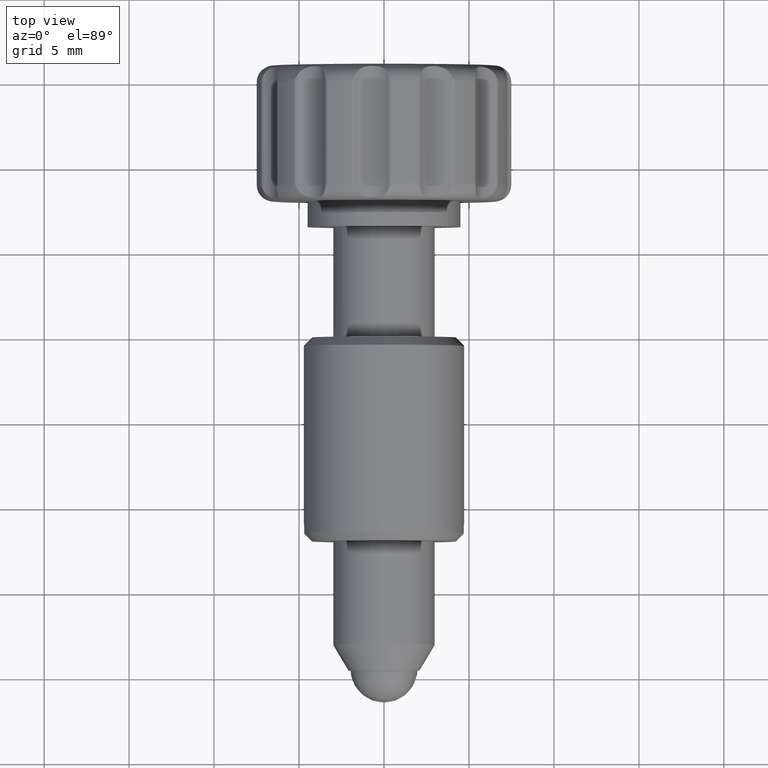
[diagram: clean part render]
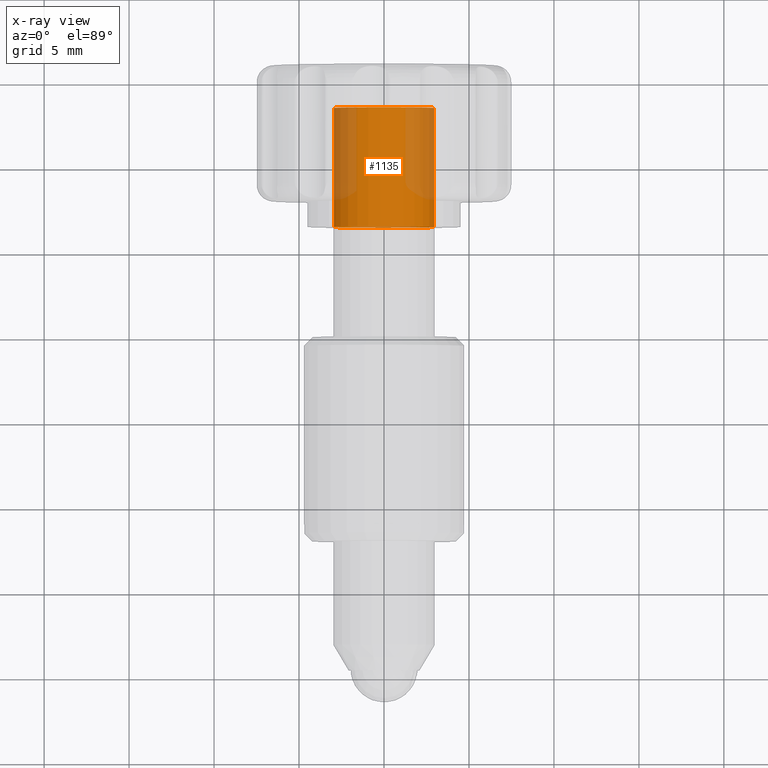
[diagram: x-ray — body ghosted, one internal face saturated and labeled with its STEP entity id]
A machine part, top view, then the same camera in x-ray: the body is ghosted and one INTERNAL B-rep face — a face not visible from any outside direction — is saturated and labeled: STEP entity #1135.
In plain terms, the highlighted cylindrical surface (bore or boss wall) has radius 2.95 mm, axis along (-0, -1, -0).
Its self-contained STEP definition (entity closure, byte-faithful):
#34 = EDGE_CURVE ( 'NONE', #1360, #1360, #2110, .T. ) ;
#162 = CIRCLE ( 'NONE', #456, 2.950000000000038813 ) ;
#175 = DIRECTION ( 'NONE',  ( -0.1636311210927796911, 2.940209281316583545E-16, -0.9865215943961490597 ) ) ;
#262 = CYLINDRICAL_SURFACE ( 'NONE', #366, 2.950000000000038813 ) ;
#366 = AXIS2_PLACEMENT_3D ( 'NONE', #2301, #1078, #495 ) ;
#456 = AXIS2_PLACEMENT_3D ( 'NONE', #1874, #2130, #2333 ) ;
#495 = DIRECTION ( 'NONE',  ( -0.1636311210927796911, 5.880418562633167089E-16, -0.9865215943961490597 ) ) ;
#965 = AXIS2_PLACEMENT_3D ( 'NONE', #2242, #2046, #175 ) ;
#1078 = DIRECTION ( 'NONE',  ( -3.260545687903909196E-16, -1.000000000000000000, -3.253773888833970700E-16 ) ) ;
#1087 = EDGE_LOOP ( 'NONE', ( #1125 ) ) ;
#1125 = ORIENTED_EDGE ( 'NONE', *, *, #34, .T. ) ;
#1135 = ADVANCED_FACE ( 'NONE', ( #1894, #2342 ), #262, .F. ) ;
#1360 = VERTEX_POINT ( 'NONE', #1966 ) ;
#1496 = EDGE_LOOP ( 'NONE', ( #1862 ) ) ;
#1862 = ORIENTED_EDGE ( 'NONE', *, *, #2011, .F. ) ;
#1874 = CARTESIAN_POINT ( 'NONE',  ( 3.174872051088092690E-15, 13.50066463725904597, -1.987618271071249342E-14 ) ) ;
#1894 = FACE_OUTER_BOUND ( 'NONE', #1496, .T. ) ;
#1966 = CARTESIAN_POINT ( 'NONE',  ( -0.4827118072237055468, 6.500664637259083278, -2.910238703468700283 ) ) ;
#2011 = EDGE_CURVE ( 'NONE', #2032, #2032, #162, .T. ) ;
#2032 = VERTEX_POINT ( 'NONE', #2231 ) ;
#2046 = DIRECTION ( 'NONE',  ( -3.260545687903909196E-16, -1.000000000000000000, -3.253773888833970700E-16 ) ) ;
#2110 = CIRCLE ( 'NONE', #965, 2.950000000000038813 ) ;
#2130 = DIRECTION ( 'NONE',  ( -3.260545687903909196E-16, -1.000000000000000000, -3.253773888833970700E-16 ) ) ;
#2231 = CARTESIAN_POINT ( 'NONE',  ( -0.4827118072237032154, 13.50066463725904775, -2.910238703468698063 ) ) ;
#2242 = CARTESIAN_POINT ( 'NONE',  ( 8.924900695553642901E-16, 6.500664637259082390, -2.215382443289627434E-14 ) ) ;
#2301 = CARTESIAN_POINT ( 'NONE',  ( 3.174872051088092690E-15, 13.50066463725904597, -1.987618271071249342E-14 ) ) ;
#2333 = DIRECTION ( 'NONE',  ( -0.1636311210927796911, 5.880418562633167089E-16, -0.9865215943961490597 ) ) ;
#2342 = FACE_OUTER_BOUND ( 'NONE', #1087, .T. ) ;